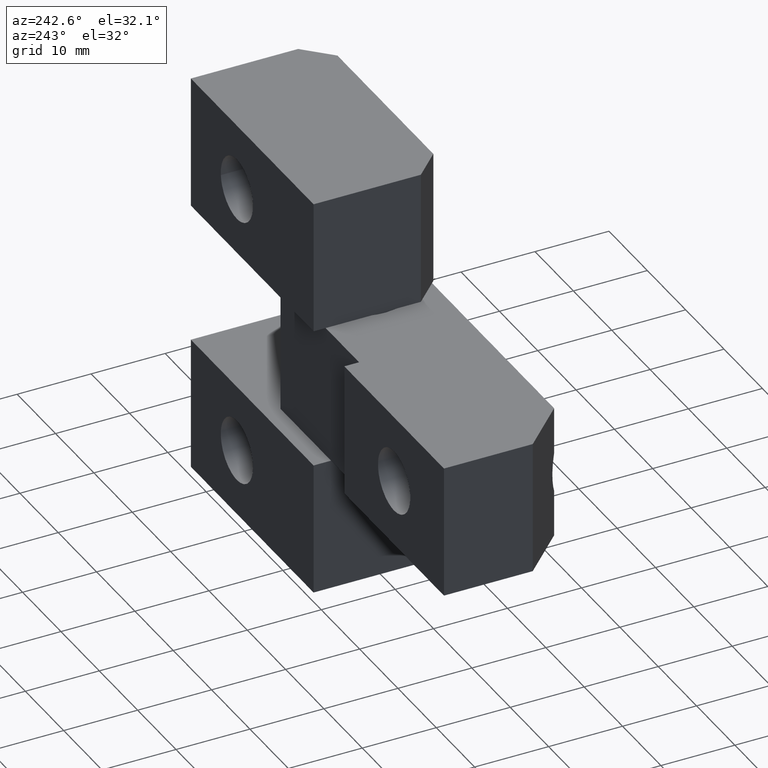
[diagram: clean part render]
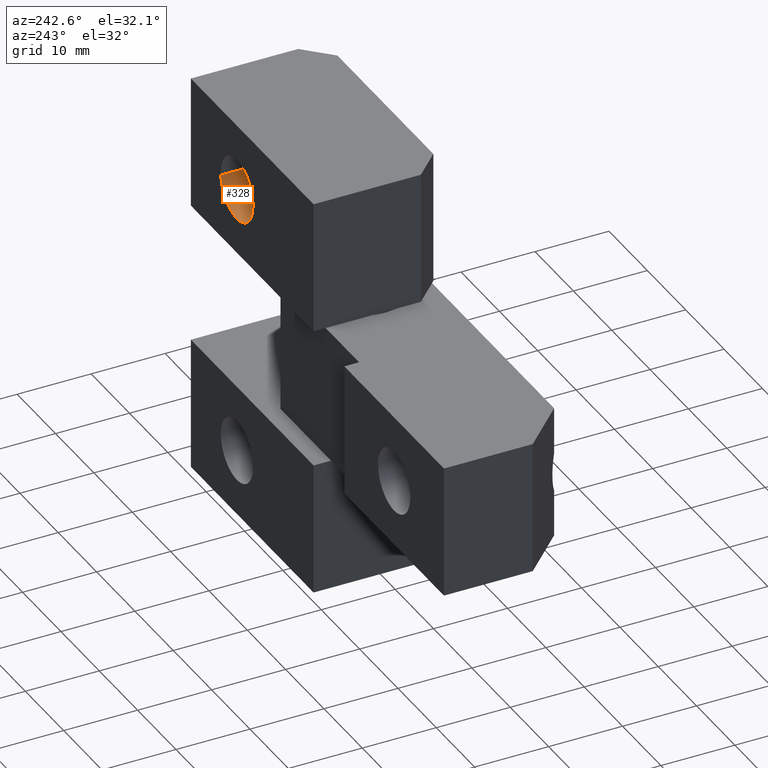
[diagram: same view with one face highlighted and labeled with its STEP entity id]
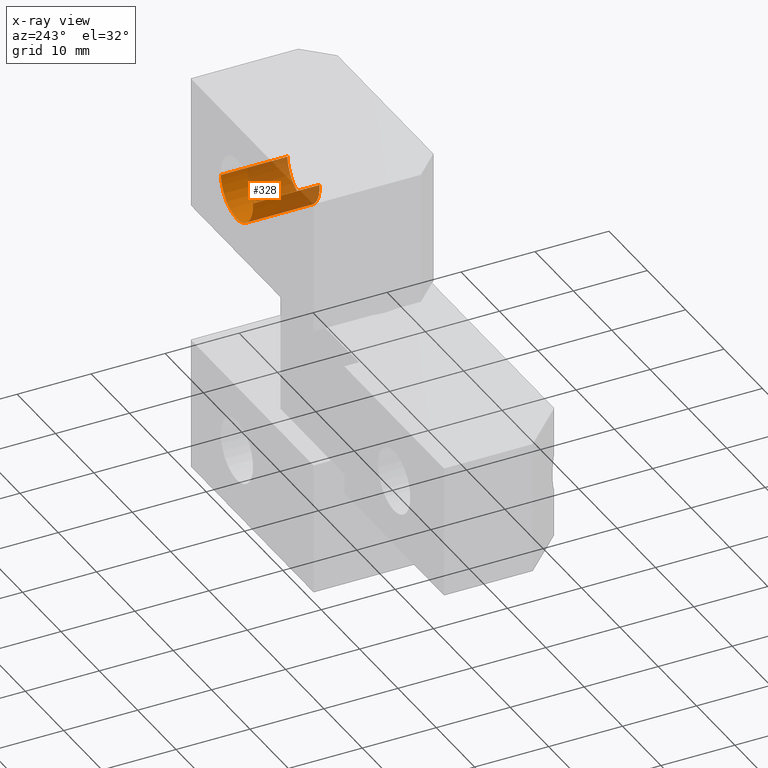
[diagram: x-ray of the same camera — body ghosted, the highlighted face saturated]
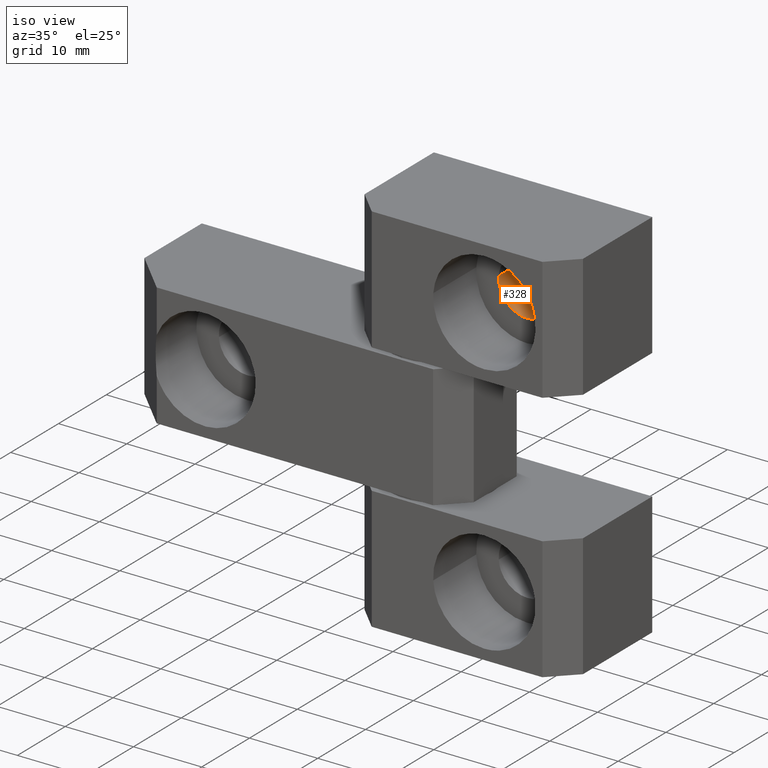
[diagram: same view with one face highlighted and labeled with its STEP entity id]
A machine part, auxiliary view. The second image highlights one B-rep face of the part: STEP entity #328.
The next image is the same camera in x-ray: the body ghosted, the highlighted face saturated — about 56% of this face is hidden behind the body in this view.
A second angle (iso view) of the same face is appended — the face is thin or edge-on in the first view.
In plain terms, the highlighted face is a freeform B-spline surface patch.
Its self-contained STEP definition (entity closure, byte-faithful):
#230=CARTESIAN_POINT('',(16.187053570522920,0.774999561836152,45.670473967173990));
#231=CARTESIAN_POINT('',(15.857525352814214,0.774999561836152,41.483420966620479));
#232=CARTESIAN_POINT('',(11.670472352260720,0.774999561836152,41.812949184329192));
#233=CARTESIAN_POINT('',(7.483419351707213,0.774999561836152,42.142477402037905));
#234=CARTESIAN_POINT('',(7.812947569415917,0.774999561836152,46.329530402591402));
#235=CARTESIAN_POINT('',(16.187053570522920,10.230625010954100,45.670473967173990));
#236=CARTESIAN_POINT('',(15.857525352814214,10.230625010954100,41.483420966620479));
#237=CARTESIAN_POINT('',(11.670472352260720,10.230625010954100,41.812949184329192));
#238=CARTESIAN_POINT('',(7.483419351707213,10.230625010954100,42.142477402037905));
#239=CARTESIAN_POINT('',(7.812947569415917,10.230625010954100,46.329530402591402));
#247=(BOUNDED_SURFACE()B_SPLINE_SURFACE(2,1,((#230,#235),(#231,#236),(#232,#237),(#233,#238),(#234,#239)),.UNSPECIFIED.,.F.,.F.,.U.)B_SPLINE_SURFACE_WITH_KNOTS((3,2,3),(2,2),(0.0,6.958788178392735,13.917576356785469),(0.0,9.455625449117949),.UNSPECIFIED.)GEOMETRIC_REPRESENTATION_ITEM()RATIONAL_B_SPLINE_SURFACE(((1.0,1.0),(0.707106781186548,0.707106781186548),(1.0,1.0),(0.707106781186548,0.707106781186548),(1.0,1.0)))REPRESENTATION_ITEM('')SURFACE());
#248=CARTESIAN_POINT('',(12.000000569969419,0.999999572523076,41.800001985393372));
#249=VERTEX_POINT('',#248);
#250=CARTESIAN_POINT('',(16.187053570515761,0.999999572523075,45.670473967082962));
#251=VERTEX_POINT('',#250);
#252=CARTESIAN_POINT('',(12.000000569969419,0.999999572523076,41.800001985393372));
#253=CARTESIAN_POINT('',(15.882440819170599,0.999999572523076,41.800001985393372));
#254=CARTESIAN_POINT('',(16.187053570515765,0.999999572523075,45.670473967082962));
#262=(BOUNDED_CURVE()B_SPLINE_CURVE(2,(#252,#253,#254),.UNSPECIFIED.,.F.,.U.)B_SPLINE_CURVE_WITH_KNOTS((3,3),(0.0,0.236331300625313),.UNSPECIFIED.)CURVE()GEOMETRIC_REPRESENTATION_ITEM()RATIONAL_B_SPLINE_CURVE((1.0,0.723120658613929,0.969723356156260))REPRESENTATION_ITEM(''));
#263=EDGE_CURVE('',#249,#251,#262,.T.);
#264=ORIENTED_EDGE('',*,*,#263,.T.);
#265=CARTESIAN_POINT('',(16.187053570515761,10.0,45.670473967082970));
#266=VERTEX_POINT('',#265);
#267=CARTESIAN_POINT('',(16.187053570515761,0.999999572523075,45.670473967082962));
#268=CARTESIAN_POINT('',(16.187053570515761,10.0,45.670473967082970));
#269=QUASI_UNIFORM_CURVE('',1,(#267,#268),.UNSPECIFIED.,.F.,.U.);
#270=EDGE_CURVE('',#251,#266,#269,.T.);
#271=ORIENTED_EDGE('',*,*,#270,.T.);
#272=CARTESIAN_POINT('',(12.000000569969419,10.0,41.800001985393372));
#273=VERTEX_POINT('',#272);
#274=CARTESIAN_POINT('',(12.000000569969419,10.0,41.800001985393372));
#275=CARTESIAN_POINT('',(15.882440819170604,10.0,41.800001985393372));
#276=CARTESIAN_POINT('',(16.187053570515758,10.0,45.670473967082970));
#284=(BOUNDED_CURVE()B_SPLINE_CURVE(2,(#274,#275,#276),.UNSPECIFIED.,.F.,.U.)B_SPLINE_CURVE_WITH_KNOTS((3,3),(0.0,0.236331300625313),.UNSPECIFIED.)CURVE()GEOMETRIC_REPRESENTATION_ITEM()RATIONAL_B_SPLINE_CURVE((1.0,0.723120658613929,0.969723356156260))REPRESENTATION_ITEM(''));
#285=EDGE_CURVE('',#273,#266,#284,.T.);
#286=ORIENTED_EDGE('',*,*,#285,.F.);
#287=CARTESIAN_POINT('',(7.812947569423081,10.0,46.329530402682423));
#288=VERTEX_POINT('',#287);
#289=CARTESIAN_POINT('',(7.812947569423081,10.0,46.329530402682423));
#290=CARTESIAN_POINT('',(7.800000370480094,10.0,46.165020642244315));
#291=CARTESIAN_POINT('',(7.800000370480094,10.0,46.000002184882703));
#292=CARTESIAN_POINT('',(7.800000370480094,10.000000000000002,41.800001985393379));
#293=CARTESIAN_POINT('',(12.000000569969419,10.0,41.800001985393372));
#301=(BOUNDED_CURVE()B_SPLINE_CURVE(2,(#289,#290,#291,#292,#293),.UNSPECIFIED.,.F.,.U.)B_SPLINE_CURVE_WITH_KNOTS((3,2,3),(0.736331300625313,0.750000000000000,1.0),.UNSPECIFIED.)CURVE()GEOMETRIC_REPRESENTATION_ITEM()RATIONAL_B_SPLINE_CURVE((0.969723356156260,0.983986122572618,1.0,0.707106781186548,1.0))REPRESENTATION_ITEM(''));
#302=EDGE_CURVE('',#288,#273,#301,.T.);
#303=ORIENTED_EDGE('',*,*,#302,.F.);
#304=CARTESIAN_POINT('',(7.812947569423081,0.999999572523076,46.329530402682423));
#305=VERTEX_POINT('',#304);
#306=CARTESIAN_POINT('',(7.812947569423081,0.999999572523076,46.329530402682423));
#307=CARTESIAN_POINT('',(7.812947569423081,10.0,46.329530402682423));
#308=QUASI_UNIFORM_CURVE('',1,(#306,#307),.UNSPECIFIED.,.F.,.U.);
#309=EDGE_CURVE('',#305,#288,#308,.T.);
#310=ORIENTED_EDGE('',*,*,#309,.F.);
#311=CARTESIAN_POINT('',(7.812947569423081,0.999999572523076,46.329530402682423));
#312=CARTESIAN_POINT('',(7.800000370480094,0.999999572523076,46.165020642244322));
#313=CARTESIAN_POINT('',(7.800000370480094,0.999999572523076,46.000002184882703));
#314=CARTESIAN_POINT('',(7.800000370480094,0.999999572523076,41.800001985393379));
#315=CARTESIAN_POINT('',(12.000000569969419,0.999999572523076,41.800001985393372));
#323=(BOUNDED_CURVE()B_SPLINE_CURVE(2,(#311,#312,#313,#314,#315),.UNSPECIFIED.,.F.,.U.)B_SPLINE_CURVE_WITH_KNOTS((3,2,3),(0.736331300625313,0.750000000000000,1.0),.UNSPECIFIED.)CURVE()GEOMETRIC_REPRESENTATION_ITEM()RATIONAL_B_SPLINE_CURVE((0.969723356156261,0.983986122572619,1.0,0.707106781186548,1.0))REPRESENTATION_ITEM(''));
#324=EDGE_CURVE('',#305,#249,#323,.T.);
#325=ORIENTED_EDGE('',*,*,#324,.T.);
#326=EDGE_LOOP('',(#264,#271,#286,#303,#310,#325));
#327=FACE_OUTER_BOUND('',#326,.T.);
#328=ADVANCED_FACE('',(#327),#247,.F.);